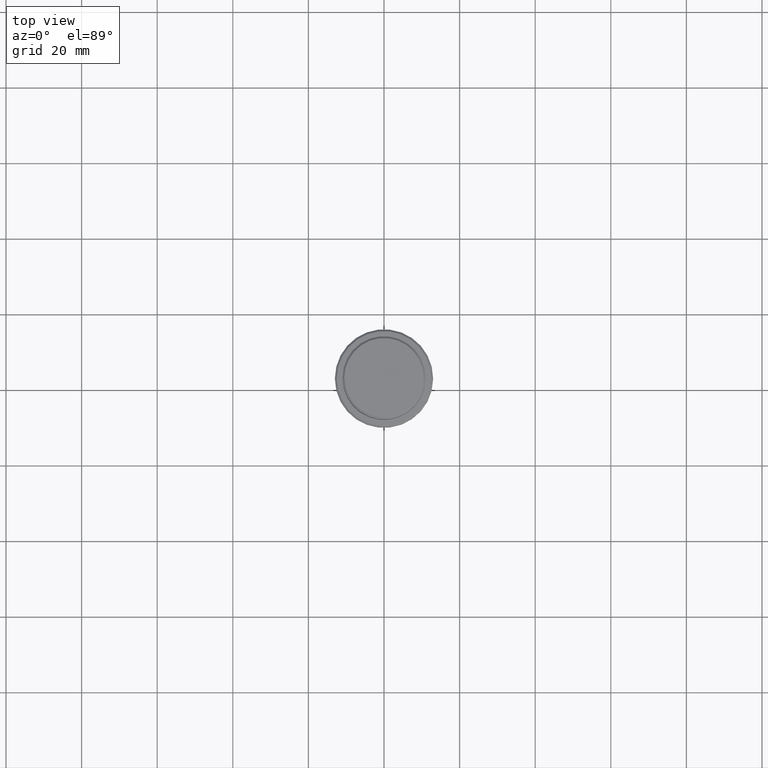
[diagram: clean part render]
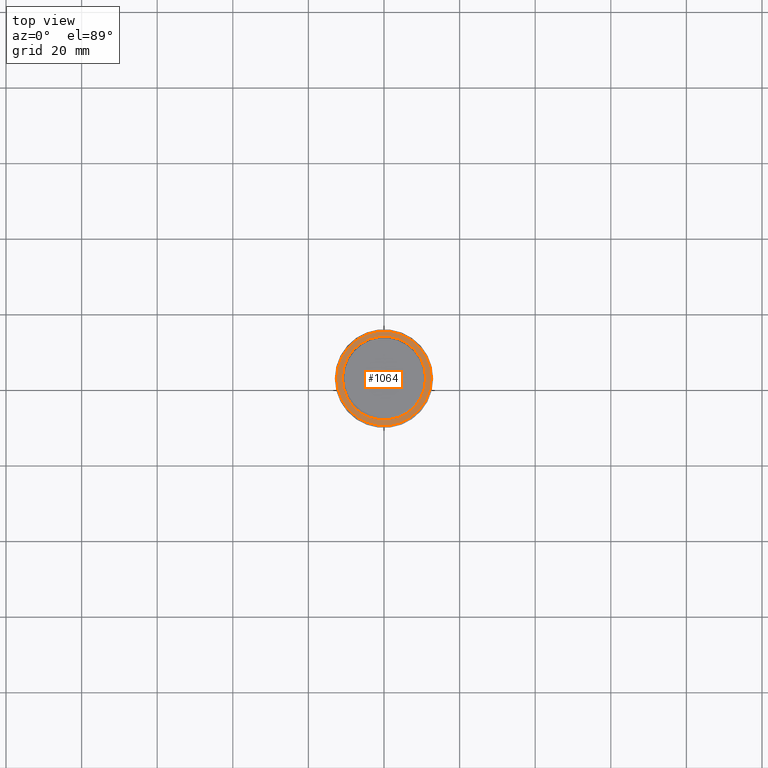
[diagram: same view with one face highlighted and labeled with its STEP entity id]
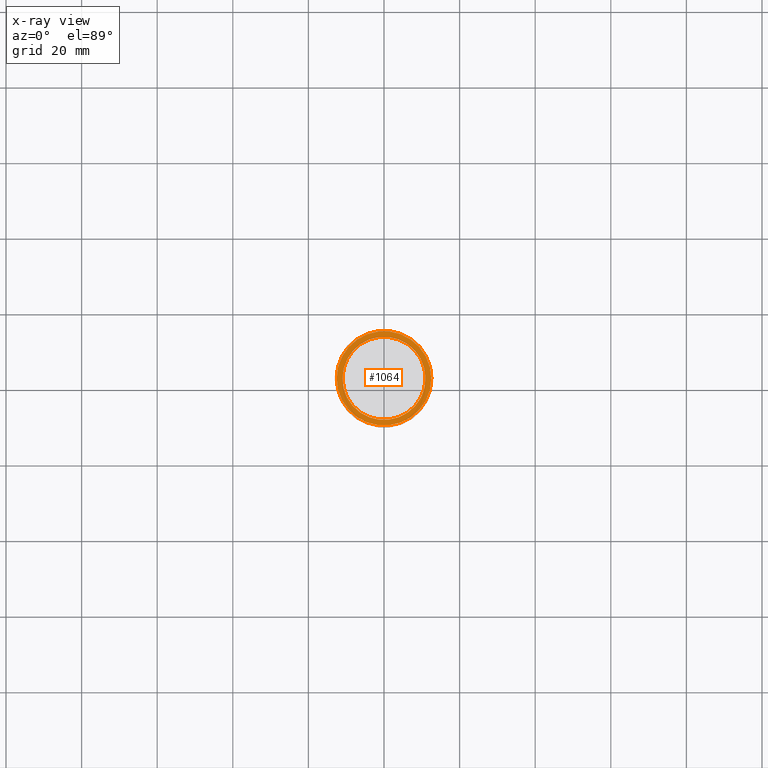
[diagram: x-ray of the same camera — body ghosted, the highlighted face saturated]
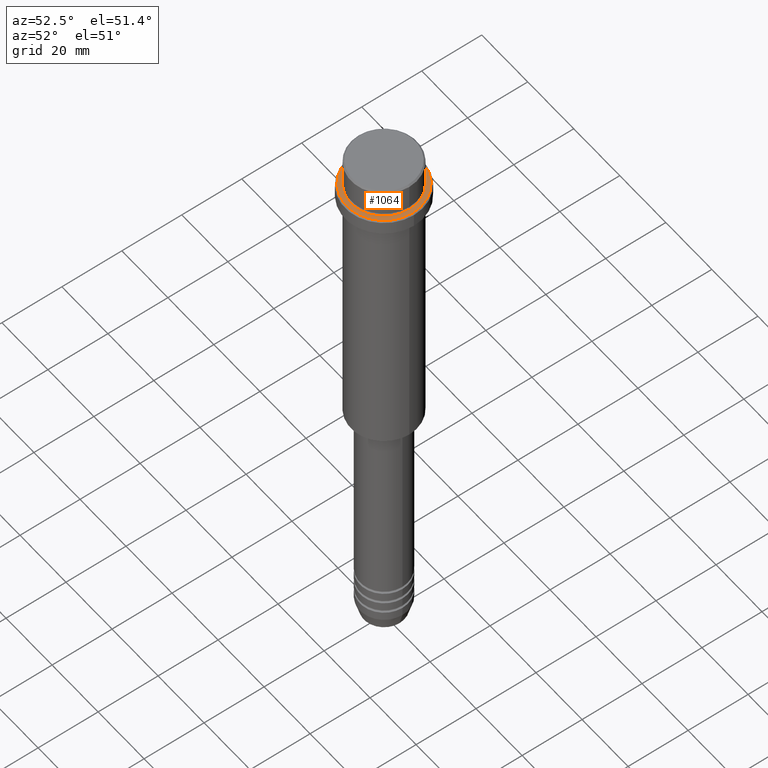
[diagram: same view with one face highlighted and labeled with its STEP entity id]
A machine part, top view. The second image highlights one B-rep face of the part: STEP entity #1064.
The next image is the same camera in x-ray: the body ghosted, the highlighted face saturated — about 0% of this face is hidden behind the body in this view.
A second angle (auxiliary view) of the same face is appended — the face is thin or edge-on in the first view.
In plain terms, the highlighted planar face has unit normal (0, -0, 1).
Its self-contained STEP definition (entity closure, byte-faithful):
#47 = CIRCLE ( 'NONE', #672, 10.99999999999996625 ) ;
#51 = AXIS2_PLACEMENT_3D ( 'NONE', #880, #1188, #229 ) ;
#77 = ORIENTED_EDGE ( 'NONE', *, *, #87, .T. ) ;
#87 = EDGE_CURVE ( 'NONE', #951, #925, #47, .T. ) ;
#161 = CARTESIAN_POINT ( 'NONE',  ( 10.99999999999996625, 0.000000000000000000, -10.00000000000000000 ) ) ;
#166 = DIRECTION ( 'NONE',  ( 1.000000000000000000, 0.000000000000000000, 0.000000000000000000 ) ) ;
#229 = DIRECTION ( 'NONE',  ( 1.000000000000000000, 0.000000000000000000, 0.000000000000000000 ) ) ;
#243 = CARTESIAN_POINT ( 'NONE',  ( -10.99999999999996625, 1.347111479062084460E-15, -10.00000000000000000 ) ) ;
#246 = DIRECTION ( 'NONE',  ( 0.000000000000000000, 0.000000000000000000, -1.000000000000000000 ) ) ;
#325 = ORIENTED_EDGE ( 'NONE', *, *, #1001, .T. ) ;
#334 = PLANE ( 'NONE',  #586 ) ;
#499 = AXIS2_PLACEMENT_3D ( 'NONE', #703, #1137, #166 ) ;
#586 = AXIS2_PLACEMENT_3D ( 'NONE', #647, #765, #1097 ) ;
#619 = CARTESIAN_POINT ( 'NONE',  ( 0.000000000000000000, 0.000000000000000000, -10.00000000000000000 ) ) ;
#647 = CARTESIAN_POINT ( 'NONE',  ( 0.000000000000000000, 10.49999999999996625, -10.00000000000000000 ) ) ;
#672 = AXIS2_PLACEMENT_3D ( 'NONE', #1125, #246, #678 ) ;
#678 = DIRECTION ( 'NONE',  ( 1.000000000000000000, 0.000000000000000000, 0.000000000000000000 ) ) ;
#703 = CARTESIAN_POINT ( 'NONE',  ( 0.000000000000000000, 0.000000000000000000, -10.00000000000000000 ) ) ;
#715 = DIRECTION ( 'NONE',  ( -0.000000000000000000, -0.000000000000000000, 1.000000000000000000 ) ) ;
#716 = CIRCLE ( 'NONE', #830, 12.49999999999998401 ) ;
#737 = CIRCLE ( 'NONE', #51, 10.99999999999996625 ) ;
#751 = CARTESIAN_POINT ( 'NONE',  ( -12.49999999999998401, 0.000000000000000000, -10.00000000000000000 ) ) ;
#755 = EDGE_LOOP ( 'NONE', ( #77, #325 ) ) ;
#765 = DIRECTION ( 'NONE',  ( 0.000000000000000000, -0.000000000000000000, 1.000000000000000000 ) ) ;
#784 = VERTEX_POINT ( 'NONE', #751 ) ;
#830 = AXIS2_PLACEMENT_3D ( 'NONE', #619, #715, #1047 ) ;
#880 = CARTESIAN_POINT ( 'NONE',  ( 0.000000000000000000, 0.000000000000000000, -10.00000000000000000 ) ) ;
#925 = VERTEX_POINT ( 'NONE', #243 ) ;
#951 = VERTEX_POINT ( 'NONE', #161 ) ;
#986 = CIRCLE ( 'NONE', #499, 12.49999999999998401 ) ;
#1001 = EDGE_CURVE ( 'NONE', #925, #951, #737, .T. ) ;
#1041 = ORIENTED_EDGE ( 'NONE', *, *, #1222, .T. ) ;
#1047 = DIRECTION ( 'NONE',  ( 1.000000000000000000, 0.000000000000000000, 0.000000000000000000 ) ) ;
#1064 = ADVANCED_FACE ( 'NONE', ( #1177, #1181 ), #334, .T. ) ;
#1097 = DIRECTION ( 'NONE',  ( 1.000000000000000000, 0.000000000000000000, 0.000000000000000000 ) ) ;
#1125 = CARTESIAN_POINT ( 'NONE',  ( 0.000000000000000000, 0.000000000000000000, -10.00000000000000000 ) ) ;
#1131 = ORIENTED_EDGE ( 'NONE', *, *, #1271, .T. ) ;
#1137 = DIRECTION ( 'NONE',  ( -0.000000000000000000, -0.000000000000000000, 1.000000000000000000 ) ) ;
#1177 = FACE_OUTER_BOUND ( 'NONE', #1282, .T. ) ;
#1181 = FACE_BOUND ( 'NONE', #755, .T. ) ;
#1188 = DIRECTION ( 'NONE',  ( 0.000000000000000000, 0.000000000000000000, -1.000000000000000000 ) ) ;
#1222 = EDGE_CURVE ( 'NONE', #1393, #784, #986, .T. ) ;
#1266 = CARTESIAN_POINT ( 'NONE',  ( 12.49999999999998401, 1.561424668912874125E-15, -10.00000000000000000 ) ) ;
#1271 = EDGE_CURVE ( 'NONE', #784, #1393, #716, .T. ) ;
#1282 = EDGE_LOOP ( 'NONE', ( #1131, #1041 ) ) ;
#1393 = VERTEX_POINT ( 'NONE', #1266 ) ;